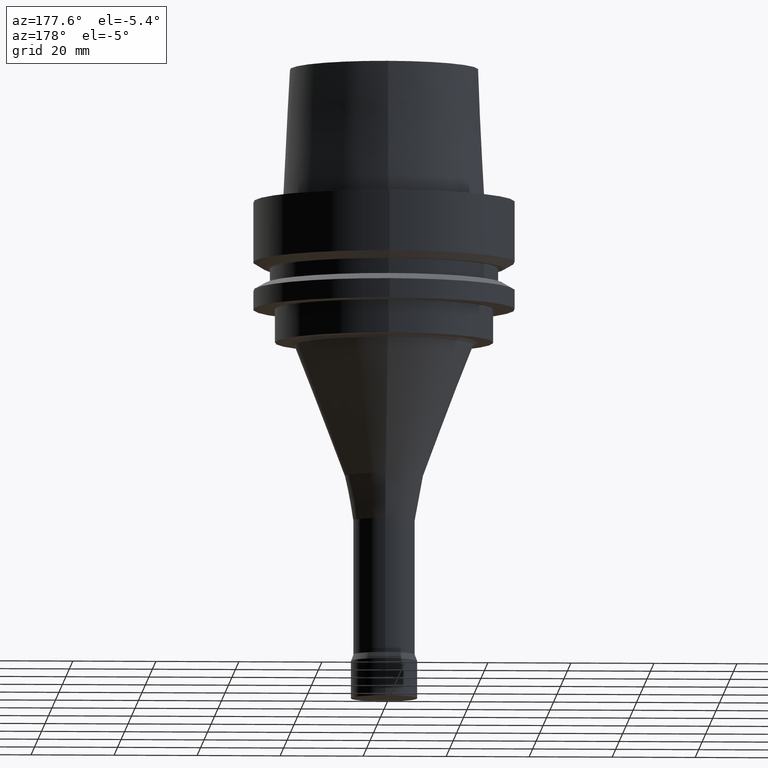
[diagram: clean part render]
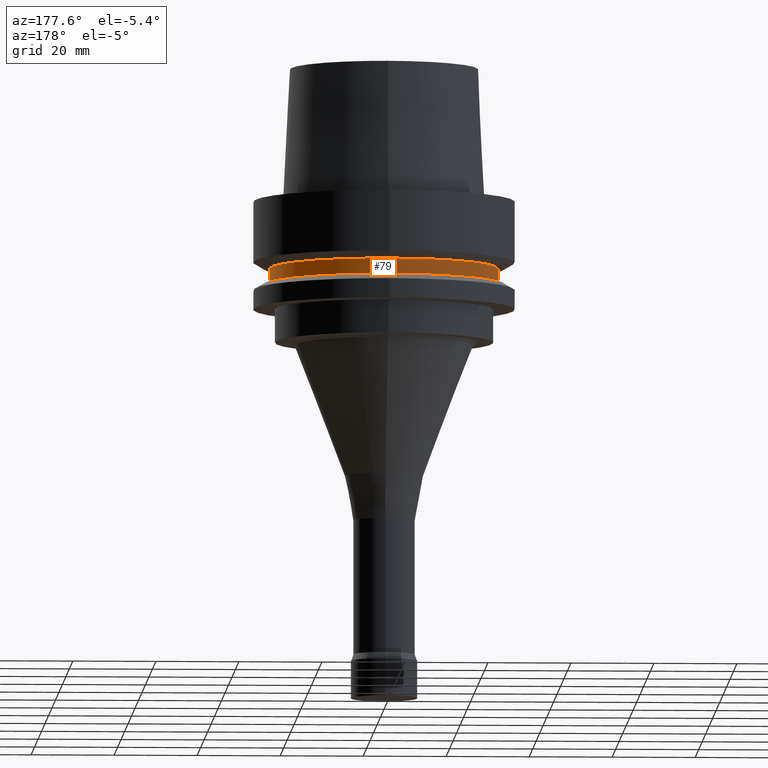
[diagram: same view with one face highlighted and labeled with its STEP entity id]
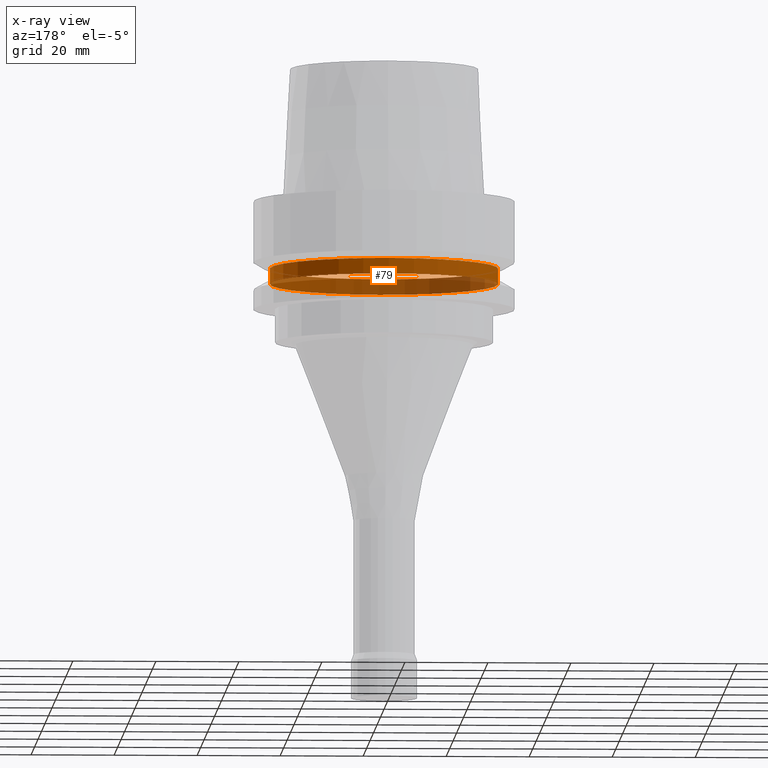
[diagram: x-ray of the same camera — body ghosted, the highlighted face saturated]
A machine part, auxiliary view. The second image highlights one B-rep face of the part: STEP entity #79.
The next image is the same camera in x-ray: the body ghosted, the highlighted face saturated — about 47% of this face is hidden behind the body in this view.
In plain terms, the highlighted cylindrical surface (bore or boss wall) has radius 27.5 mm, axis along (-0, -0, 1).
Its self-contained STEP definition (entity closure, byte-faithful):
#79=ADVANCED_FACE('',(#108,#109),#110,.T.);
#108=FACE_BOUND('',#166,.T.);
#109=FACE_BOUND('',#167,.T.);
#110=CYLINDRICAL_SURFACE('',#168,27.5);
#166=EDGE_LOOP('',(#232));
#167=EDGE_LOOP('',(#233));
#168=AXIS2_PLACEMENT_3D('',#234,#235,#236);
#232=ORIENTED_EDGE('',*,*,#315,.F.);
#233=ORIENTED_EDGE('',*,*,#314,.T.);
#234=CARTESIAN_POINT('',(1.10218211923262E-015,2.20436423846524E-015,-18.0));
#235=DIRECTION('',(-6.12323399573677E-017,-1.22464679914735E-016,1.0));
#236=DIRECTION('',(-1.23259516440783E-032,1.0,1.22464679914735E-016));
#314=EDGE_CURVE('',#337,#337,#338,.T.);
#315=EDGE_CURVE('',#339,#339,#340,.T.);
#337=VERTEX_POINT('',#375);
#338=CIRCLE('',#376,27.5);
#339=VERTEX_POINT('',#377);
#340=CIRCLE('',#378,27.5);
#375=CARTESIAN_POINT('',(9.87371481812553E-016,27.5,-16.125));
#376=AXIS2_PLACEMENT_3D('',#417,#418,#419);
#377=CARTESIAN_POINT('',(1.21699275665268E-015,27.5,-19.875));
#378=AXIS2_PLACEMENT_3D('',#420,#421,#422);
#417=CARTESIAN_POINT('',(9.87371481812554E-016,1.97474296362511E-015,-16.125));
#418=DIRECTION('',(6.12323399573677E-017,1.22464679914735E-016,-1.0));
#419=DIRECTION('',(-1.23259516440783E-032,1.0,1.22464679914735E-016));
#420=CARTESIAN_POINT('',(1.21699275665268E-015,2.43398551330536E-015,-19.875));
#421=DIRECTION('',(6.12323399573677E-017,1.22464679914735E-016,-1.0));
#422=DIRECTION('',(-1.23259516440783E-032,1.0,1.22464679914735E-016));